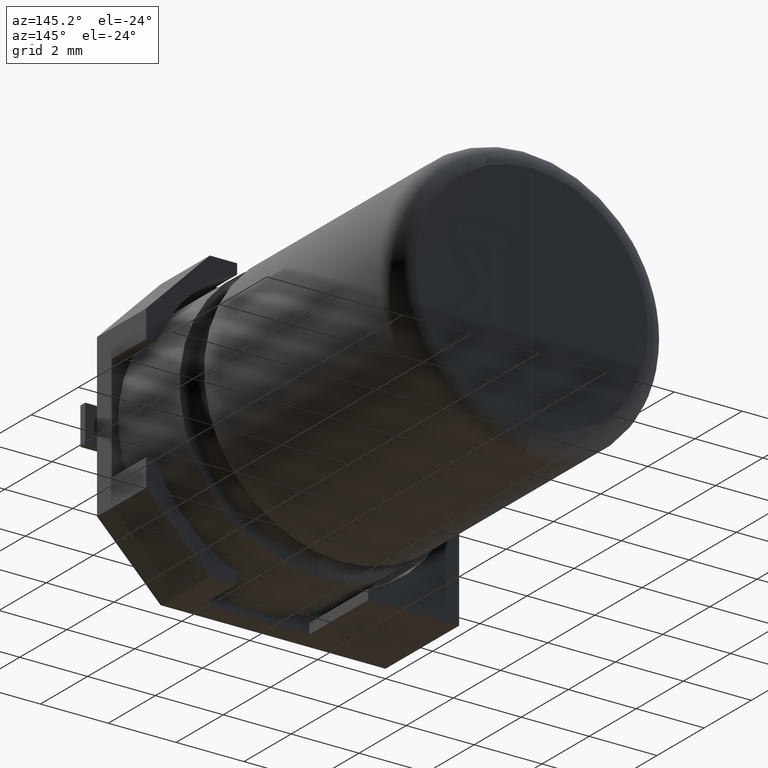
[diagram: clean part render]
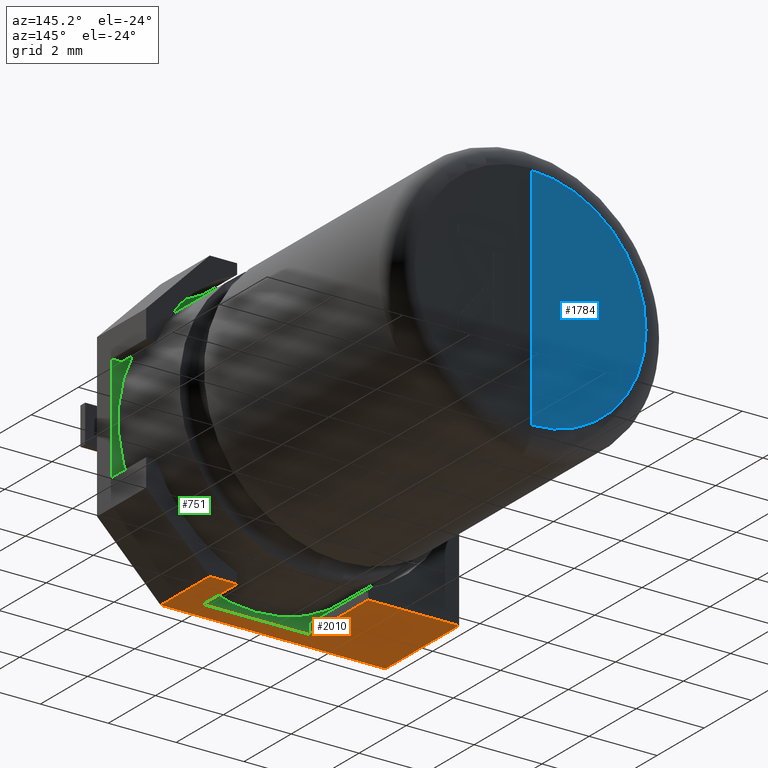
[diagram: same view with three faces highlighted in distinct colors, each labeled with its STEP entity id]
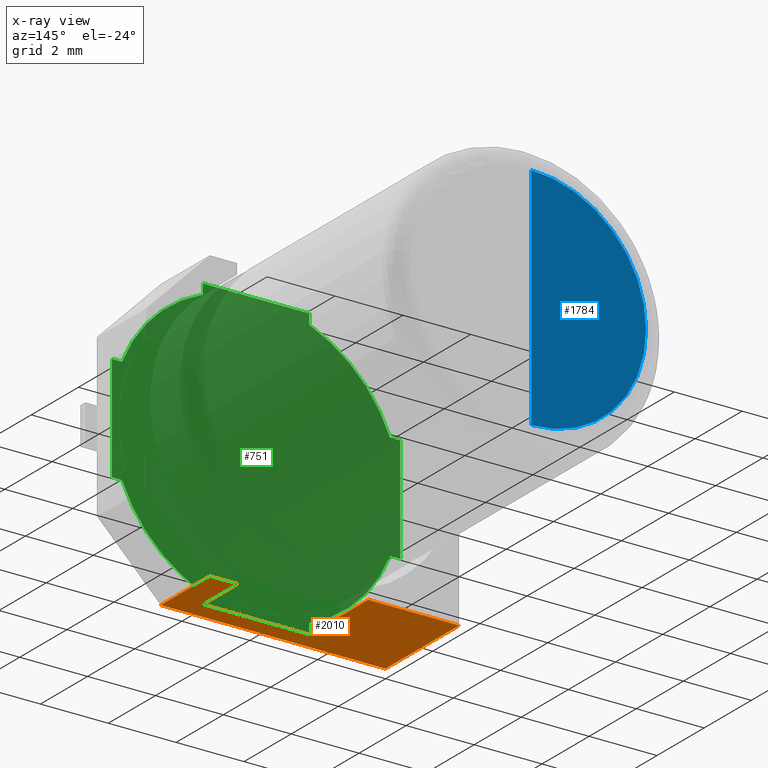
[diagram: x-ray of the same camera — body ghosted, the three highlighted faces saturated]
A machine part, auxiliary view with three faces highlighted in distinct colors.
The next image is the same camera in x-ray (body ghosted, the three faces saturated) — at least one of them is partly hidden behind the body in this view.
Their STEP definitions:

[orange] entity #2010 — the highlighted planar face has unit normal (0, 0, -1).
#6 = LINE ( 'NONE', #58, #1069 ) ;
#58 = CARTESIAN_POINT ( 'NONE',  ( 0.000000000000000000, 3.125000000000000000, -8.500000000000000000 ) ) ;
#94 = DIRECTION ( 'NONE',  ( 1.000000000000000000, 0.000000000000000000, 0.000000000000000000 ) ) ;
#101 = EDGE_CURVE ( 'NONE', #471, #329, #547, .T. ) ;
#128 = CARTESIAN_POINT ( 'NONE',  ( 5.818438714135809597, 0.6250000000000001110, -8.500000000000000000 ) ) ;
#191 = CARTESIAN_POINT ( 'NONE',  ( 6.625750000000000917, 0.000000000000000000, -8.500000000000000000 ) ) ;
#214 = CARTESIAN_POINT ( 'NONE',  ( 0.000000000000000000, 0.6250000000000001110, -8.500000000000000000 ) ) ;
#329 = VERTEX_POINT ( 'NONE', #352 ) ;
#348 = EDGE_CURVE ( 'NONE', #2992, #1726, #853, .T. ) ;
#352 = CARTESIAN_POINT ( 'NONE',  ( 2.681561285864186406, 3.125000000000000000, -8.500000000000000000 ) ) ;
#386 = ORIENTED_EDGE ( 'NONE', *, *, #3218, .F. ) ;
#410 = VECTOR ( 'NONE', #921, 1000.000000000000000 ) ;
#429 = ORIENTED_EDGE ( 'NONE', *, *, #1021, .T. ) ;
#464 = EDGE_CURVE ( 'NONE', #924, #329, #2231, .T. ) ;
#471 = VERTEX_POINT ( 'NONE', #3259 ) ;
#473 = VECTOR ( 'NONE', #2989, 1000.000000000000000 ) ;
#497 = VECTOR ( 'NONE', #1048, 1000.000000000000000 ) ;
#547 = LINE ( 'NONE', #2116, #2918 ) ;
#549 = DIRECTION ( 'NONE',  ( 0.000000000000000000, 0.000000000000000000, -1.000000000000000000 ) ) ;
#573 = DIRECTION ( 'NONE',  ( -0.000000000000000000, 1.000000000000000000, -0.000000000000000000 ) ) ;
#616 = CARTESIAN_POINT ( 'NONE',  ( 0.000000000000000000, 3.125000000000000000, -8.500000000000000000 ) ) ;
#698 = AXIS2_PLACEMENT_3D ( 'NONE', #2220, #549, #1886 ) ;
#725 = LINE ( 'NONE', #191, #2949 ) ;
#853 = LINE ( 'NONE', #128, #1051 ) ;
#857 = VECTOR ( 'NONE', #94, 1000.000000000000000 ) ;
#869 = VERTEX_POINT ( 'NONE', #2631 ) ;
#921 = DIRECTION ( 'NONE',  ( 1.000000000000000000, 0.000000000000000000, 0.000000000000000000 ) ) ;
#924 = VERTEX_POINT ( 'NONE', #616 ) ;
#1021 = EDGE_CURVE ( 'NONE', #1726, #2766, #1682, .T. ) ;
#1048 = DIRECTION ( 'NONE',  ( -1.000000000000000000, 0.000000000000000000, 0.000000000000000000 ) ) ;
#1051 = VECTOR ( 'NONE', #573, 1000.000000000000000 ) ;
#1069 = VECTOR ( 'NONE', #2418, 1000.000000000000000 ) ;
#1112 = VERTEX_POINT ( 'NONE', #2765 ) ;
#1141 = LINE ( 'NONE', #1388, #857 ) ;
#1145 = CARTESIAN_POINT ( 'NONE',  ( 5.818438714135811374, 2.083333333333333925, -8.500000000000000000 ) ) ;
#1273 = LINE ( 'NONE', #214, #497 ) ;
#1344 = EDGE_CURVE ( 'NONE', #924, #1112, #6, .T. ) ;
#1388 = CARTESIAN_POINT ( 'NONE',  ( 0.000000000000000000, 0.000000000000000000, -8.500000000000000000 ) ) ;
#1628 = DIRECTION ( 'NONE',  ( -0.000000000000000000, 1.000000000000000000, -0.000000000000000000 ) ) ;
#1682 = LINE ( 'NONE', #1145, #473 ) ;
#1726 = VERTEX_POINT ( 'NONE', #3227 ) ;
#1860 = ORIENTED_EDGE ( 'NONE', *, *, #101, .F. ) ;
#1886 = DIRECTION ( 'NONE',  ( -1.000000000000000000, 0.000000000000000000, -0.000000000000000000 ) ) ;
#1993 = ORIENTED_EDGE ( 'NONE', *, *, #1344, .F. ) ;
#2010 = ADVANCED_FACE ( 'NONE', ( #2714 ), #2199, .T. ) ;
#2116 = CARTESIAN_POINT ( 'NONE',  ( 2.681561285864186406, 0.6250000000000001110, -8.500000000000000000 ) ) ;
#2137 = ORIENTED_EDGE ( 'NONE', *, *, #464, .T. ) ;
#2199 = PLANE ( 'NONE',  #698 ) ;
#2211 = CARTESIAN_POINT ( 'NONE',  ( 0.000000000000000000, 3.125000000000000000, -8.500000000000000000 ) ) ;
#2220 = CARTESIAN_POINT ( 'NONE',  ( 0.000000000000000000, 3.125000000000000000, -8.500000000000000000 ) ) ;
#2231 = LINE ( 'NONE', #2211, #410 ) ;
#2324 = EDGE_LOOP ( 'NONE', ( #429, #3420, #2657, #1993, #2137, #1860, #386, #3365 ) ) ;
#2418 = DIRECTION ( 'NONE',  ( -0.000000000000000000, -1.000000000000000000, -0.000000000000000000 ) ) ;
#2432 = CARTESIAN_POINT ( 'NONE',  ( 5.818438714135809597, 0.6250000000000001110, -8.500000000000000000 ) ) ;
#2555 = EDGE_CURVE ( 'NONE', #869, #2766, #725, .T. ) ;
#2631 = CARTESIAN_POINT ( 'NONE',  ( 6.625750000000000917, 0.000000000000000000, -8.500000000000000000 ) ) ;
#2657 = ORIENTED_EDGE ( 'NONE', *, *, #3000, .F. ) ;
#2714 = FACE_OUTER_BOUND ( 'NONE', #2324, .T. ) ;
#2765 = CARTESIAN_POINT ( 'NONE',  ( 0.000000000000000000, 0.000000000000000000, -8.500000000000000000 ) ) ;
#2766 = VERTEX_POINT ( 'NONE', #3254 ) ;
#2918 = VECTOR ( 'NONE', #1628, 1000.000000000000000 ) ;
#2949 = VECTOR ( 'NONE', #3083, 1000.000000000000000 ) ;
#2989 = DIRECTION ( 'NONE',  ( 1.000000000000000000, 0.000000000000000000, 0.000000000000000000 ) ) ;
#2992 = VERTEX_POINT ( 'NONE', #2432 ) ;
#3000 = EDGE_CURVE ( 'NONE', #1112, #869, #1141, .T. ) ;
#3083 = DIRECTION ( 'NONE',  ( -0.000000000000000000, 1.000000000000000000, -0.000000000000000000 ) ) ;
#3218 = EDGE_CURVE ( 'NONE', #2992, #471, #1273, .T. ) ;
#3227 = CARTESIAN_POINT ( 'NONE',  ( 5.818438714135811374, 2.083333333333333925, -8.500000000000000000 ) ) ;
#3254 = CARTESIAN_POINT ( 'NONE',  ( 6.625750000000000917, 2.083333333333333925, -8.500000000000000000 ) ) ;
#3259 = CARTESIAN_POINT ( 'NONE',  ( 2.681561285864186406, 0.6250000000000001110, -8.500000000000000000 ) ) ;
#3365 = ORIENTED_EDGE ( 'NONE', *, *, #348, .T. ) ;
#3420 = ORIENTED_EDGE ( 'NONE', *, *, #2555, .F. ) ;

[blue] entity #1784 — the highlighted planar face has unit normal (0, 1, 0).
#190 = DIRECTION ( 'NONE',  ( 0.000000000000000000, -0.000000000000000000, 1.000000000000000000 ) ) ;
#301 = DIRECTION ( 'NONE',  ( -0.000000000000000000, -0.000000000000000000, -1.000000000000000000 ) ) ;
#560 = LINE ( 'NONE', #2648, #2731 ) ;
#708 = PLANE ( 'NONE',  #1925 ) ;
#916 = CIRCLE ( 'NONE', #1036, 3.374967499999999454 ) ;
#1034 = CARTESIAN_POINT ( 'NONE',  ( 4.250000000000000000, 12.30500000000000149, -4.250000000000001776 ) ) ;
#1036 = AXIS2_PLACEMENT_3D ( 'NONE', #1034, #1553, #3407 ) ;
#1183 = CARTESIAN_POINT ( 'NONE',  ( 4.250000000000000000, 12.30500000000000149, -4.250000000000001776 ) ) ;
#1271 = ORIENTED_EDGE ( 'NONE', *, *, #3138, .T. ) ;
#1377 = FACE_OUTER_BOUND ( 'NONE', #3226, .T. ) ;
#1421 = ORIENTED_EDGE ( 'NONE', *, *, #2978, .T. ) ;
#1553 = DIRECTION ( 'NONE',  ( 0.000000000000000000, 1.000000000000000000, 0.000000000000000000 ) ) ;
#1748 = DIRECTION ( 'NONE',  ( 0.000000000000000000, 1.000000000000000000, 0.000000000000000000 ) ) ;
#1784 = ADVANCED_FACE ( 'NONE', ( #1377 ), #708, .T. ) ;
#1874 = CARTESIAN_POINT ( 'NONE',  ( 4.250000000000000000, 12.30500000000000149, -0.8750325000000027664 ) ) ;
#1925 = AXIS2_PLACEMENT_3D ( 'NONE', #1183, #1748, #190 ) ;
#2275 = VERTEX_POINT ( 'NONE', #2664 ) ;
#2648 = CARTESIAN_POINT ( 'NONE',  ( 4.250000000000000000, 12.30500000000000149, -4.250000000000001776 ) ) ;
#2664 = CARTESIAN_POINT ( 'NONE',  ( 4.250000000000000000, 12.30500000000000149, -7.624967500000001230 ) ) ;
#2731 = VECTOR ( 'NONE', #301, 1000.000000000000000 ) ;
#2769 = VERTEX_POINT ( 'NONE', #1874 ) ;
#2978 = EDGE_CURVE ( 'NONE', #2769, #2275, #560, .T. ) ;
#3138 = EDGE_CURVE ( 'NONE', #2275, #2769, #916, .T. ) ;
#3226 = EDGE_LOOP ( 'NONE', ( #1421, #1271 ) ) ;
#3407 = DIRECTION ( 'NONE',  ( 0.000000000000000000, 0.000000000000000000, 1.000000000000000000 ) ) ;

[green] entity #751 — the highlighted planar face has unit normal (0, 1, -0).
#10 = ORIENTED_EDGE ( 'NONE', *, *, #2824, .F. ) ;
#11 = LINE ( 'NONE', #1863, #693 ) ;
#47 = EDGE_CURVE ( 'NONE', #1035, #1084, #502, .T. ) ;
#57 = CARTESIAN_POINT ( 'NONE',  ( 0.2999999999999995448, 0.6250000000000001110, -5.818438714135817591 ) ) ;
#59 = ORIENTED_EDGE ( 'NONE', *, *, #1724, .T. ) ;
#85 = ORIENTED_EDGE ( 'NONE', *, *, #1483, .T. ) ;
#97 = CARTESIAN_POINT ( 'NONE',  ( 8.500000000000000000, 0.6250000000000001110, -5.818438714135811374 ) ) ;
#153 = ORIENTED_EDGE ( 'NONE', *, *, #3218, .T. ) ;
#198 = DIRECTION ( 'NONE',  ( 0.000000000000000000, 0.000000000000000000, 1.000000000000000000 ) ) ;
#214 = CARTESIAN_POINT ( 'NONE',  ( 0.000000000000000000, 0.6250000000000001110, -8.500000000000000000 ) ) ;
#240 = AXIS2_PLACEMENT_3D ( 'NONE', #3076, #2532, #198 ) ;
#254 = CARTESIAN_POINT ( 'NONE',  ( 0.000000000000000000, 0.6250000000000001110, -5.818438714135817591 ) ) ;
#260 = VECTOR ( 'NONE', #777, 1000.000000000000000 ) ;
#267 = CARTESIAN_POINT ( 'NONE',  ( 2.681561285864189514, 0.6250000000000001110, -3.876472762382636778E-15 ) ) ;
#327 = CARTESIAN_POINT ( 'NONE',  ( 0.000000000000000000, 0.6250000000000001110, -5.818438714135817591 ) ) ;
#372 = VECTOR ( 'NONE', #1986, 1000.000000000000000 ) ;
#380 = DIRECTION ( 'NONE',  ( 0.000000000000000000, 0.000000000000000000, 1.000000000000000000 ) ) ;
#395 = CARTESIAN_POINT ( 'NONE',  ( 0.2999999999999999334, 0.6250000000000001110, -2.681561285864182853 ) ) ;
#400 = CARTESIAN_POINT ( 'NONE',  ( 5.818438714135809597, 0.6250000000000001110, -8.200000000000002842 ) ) ;
#412 = CIRCLE ( 'NONE', #2309, 4.250000000000000000 ) ;
#420 = EDGE_CURVE ( 'NONE', #1111, #2992, #1434, .T. ) ;
#427 = EDGE_CURVE ( 'NONE', #1976, #1457, #2505, .T. ) ;
#448 = ORIENTED_EDGE ( 'NONE', *, *, #769, .T. ) ;
#471 = VERTEX_POINT ( 'NONE', #3259 ) ;
#497 = VECTOR ( 'NONE', #1048, 1000.000000000000000 ) ;
#502 = LINE ( 'NONE', #254, #1270 ) ;
#518 = CARTESIAN_POINT ( 'NONE',  ( 4.249999999999998224, 0.6250000000000001110, -4.250000000000000000 ) ) ;
#558 = EDGE_CURVE ( 'NONE', #1500, #1146, #3105, .T. ) ;
#594 = CARTESIAN_POINT ( 'NONE',  ( 2.681561285864186406, 0.6250000000000001110, 0.000000000000000000 ) ) ;
#693 = VECTOR ( 'NONE', #3207, 1000.000000000000000 ) ;
#704 = DIRECTION ( 'NONE',  ( 0.000000000000000000, 0.000000000000000000, 1.000000000000000000 ) ) ;
#723 = DIRECTION ( 'NONE',  ( 1.000000000000000000, -0.000000000000000000, 0.000000000000000000 ) ) ;
#751 = ADVANCED_FACE ( 'NONE', ( #2148 ), #2412, .T. ) ;
#769 = EDGE_CURVE ( 'NONE', #1835, #1111, #412, .T. ) ;
#777 = DIRECTION ( 'NONE',  ( 1.445602896647339706E-15, 0.000000000000000000, 1.000000000000000000 ) ) ;
#842 = VERTEX_POINT ( 'NONE', #1588 ) ;
#956 = CARTESIAN_POINT ( 'NONE',  ( 2.681561285864186406, 0.6250000000000001110, -8.200000000000001066 ) ) ;
#977 = CARTESIAN_POINT ( 'NONE',  ( 8.199999999999999289, 0.6250000000000001110, -5.818438714135811374 ) ) ;
#994 = CARTESIAN_POINT ( 'NONE',  ( 0.000000000000000000, 0.6250000000000001110, 0.000000000000000000 ) ) ;
#1035 = VERTEX_POINT ( 'NONE', #57 ) ;
#1048 = DIRECTION ( 'NONE',  ( -1.000000000000000000, 0.000000000000000000, 0.000000000000000000 ) ) ;
#1076 = DIRECTION ( 'NONE',  ( 0.000000000000000000, 0.000000000000000000, -1.000000000000000000 ) ) ;
#1084 = VERTEX_POINT ( 'NONE', #327 ) ;
#1111 = VERTEX_POINT ( 'NONE', #400 ) ;
#1132 = AXIS2_PLACEMENT_3D ( 'NONE', #1742, #2518, #1756 ) ;
#1146 = VERTEX_POINT ( 'NONE', #1950 ) ;
#1167 = CARTESIAN_POINT ( 'NONE',  ( 5.818438714135811374, 0.6250000000000001110, 0.000000000000000000 ) ) ;
#1270 = VECTOR ( 'NONE', #1288, 1000.000000000000000 ) ;
#1273 = LINE ( 'NONE', #214, #497 ) ;
#1287 = CIRCLE ( 'NONE', #1132, 4.250000000000000000 ) ;
#1288 = DIRECTION ( 'NONE',  ( -1.000000000000000000, 0.000000000000000000, 0.000000000000000000 ) ) ;
#1422 = ORIENTED_EDGE ( 'NONE', *, *, #2291, .T. ) ;
#1434 = LINE ( 'NONE', #3014, #3273 ) ;
#1457 = VERTEX_POINT ( 'NONE', #2990 ) ;
#1482 = EDGE_CURVE ( 'NONE', #1500, #1763, #2973, .T. ) ;
#1483 = EDGE_CURVE ( 'NONE', #1846, #1035, #3399, .T. ) ;
#1500 = VERTEX_POINT ( 'NONE', #395 ) ;
#1504 = AXIS2_PLACEMENT_3D ( 'NONE', #3029, #1715, #380 ) ;
#1578 = EDGE_CURVE ( 'NONE', #1835, #2796, #1793, .T. ) ;
#1580 = DIRECTION ( 'NONE',  ( 0.000000000000000000, 1.000000000000000000, -0.000000000000000000 ) ) ;
#1588 = CARTESIAN_POINT ( 'NONE',  ( 5.818438714135811374, 0.6250000000000001110, -0.2999999999999999334 ) ) ;
#1640 = ORIENTED_EDGE ( 'NONE', *, *, #1652, .F. ) ;
#1652 = EDGE_CURVE ( 'NONE', #1846, #471, #2341, .T. ) ;
#1715 = DIRECTION ( 'NONE',  ( 0.000000000000000000, 1.000000000000000000, -0.000000000000000000 ) ) ;
#1724 = EDGE_CURVE ( 'NONE', #2863, #2535, #11, .T. ) ;
#1733 = ORIENTED_EDGE ( 'NONE', *, *, #1482, .F. ) ;
#1742 = CARTESIAN_POINT ( 'NONE',  ( 4.249999999999998224, 0.6250000000000001110, -4.250000000000000000 ) ) ;
#1756 = DIRECTION ( 'NONE',  ( 0.000000000000000000, 0.000000000000000000, 1.000000000000000000 ) ) ;
#1763 = VERTEX_POINT ( 'NONE', #3175 ) ;
#1770 = VECTOR ( 'NONE', #1076, 1000.000000000000000 ) ;
#1787 = ORIENTED_EDGE ( 'NONE', *, *, #2128, .T. ) ;
#1789 = ORIENTED_EDGE ( 'NONE', *, *, #1578, .F. ) ;
#1793 = LINE ( 'NONE', #2586, #3057 ) ;
#1835 = VERTEX_POINT ( 'NONE', #977 ) ;
#1846 = VERTEX_POINT ( 'NONE', #956 ) ;
#1863 = CARTESIAN_POINT ( 'NONE',  ( 0.000000000000000000, 0.6250000000000001110, 0.000000000000000000 ) ) ;
#1930 = ORIENTED_EDGE ( 'NONE', *, *, #558, .T. ) ;
#1950 = CARTESIAN_POINT ( 'NONE',  ( 2.681561285864189070, 0.6250000000000001110, -0.2999999999999989342 ) ) ;
#1976 = VERTEX_POINT ( 'NONE', #2105 ) ;
#1986 = DIRECTION ( 'NONE',  ( 0.000000000000000000, 0.000000000000000000, -1.000000000000000000 ) ) ;
#2018 = DIRECTION ( 'NONE',  ( 0.000000000000000000, 0.000000000000000000, 1.000000000000000000 ) ) ;
#2051 = CARTESIAN_POINT ( 'NONE',  ( 2.681561285864189070, 0.6250000000000001110, 0.000000000000000000 ) ) ;
#2062 = CARTESIAN_POINT ( 'NONE',  ( 4.249999999999998224, 0.6250000000000001110, -4.250000000000000000 ) ) ;
#2063 = LINE ( 'NONE', #267, #260 ) ;
#2105 = CARTESIAN_POINT ( 'NONE',  ( 8.199999999999999289, 0.6250000000000001110, -2.681561285864191735 ) ) ;
#2128 = EDGE_CURVE ( 'NONE', #842, #1976, #1287, .T. ) ;
#2129 = VECTOR ( 'NONE', #2459, 1000.000000000000000 ) ;
#2148 = FACE_OUTER_BOUND ( 'NONE', #2162, .T. ) ;
#2157 = ORIENTED_EDGE ( 'NONE', *, *, #2691, .T. ) ;
#2162 = EDGE_LOOP ( 'NONE', ( #1733, #1930, #1422, #59, #10, #1787, #2742, #3097, #1789, #448, #3300, #153, #1640, #85, #3102, #2157 ) ) ;
#2173 = DIRECTION ( 'NONE',  ( -1.000000000000000000, 0.000000000000000000, 0.000000000000000000 ) ) ;
#2184 = LINE ( 'NONE', #3061, #2342 ) ;
#2251 = LINE ( 'NONE', #2526, #372 ) ;
#2291 = EDGE_CURVE ( 'NONE', #1146, #2863, #2063, .T. ) ;
#2306 = DIRECTION ( 'NONE',  ( 0.000000000000000000, 0.000000000000000000, 1.000000000000000000 ) ) ;
#2309 = AXIS2_PLACEMENT_3D ( 'NONE', #2062, #2842, #2306 ) ;
#2341 = LINE ( 'NONE', #594, #1770 ) ;
#2342 = VECTOR ( 'NONE', #704, 1000.000000000000000 ) ;
#2412 = PLANE ( 'NONE',  #240 ) ;
#2432 = CARTESIAN_POINT ( 'NONE',  ( 5.818438714135809597, 0.6250000000000001110, -8.500000000000000000 ) ) ;
#2439 = CARTESIAN_POINT ( 'NONE',  ( 0.000000000000000000, 0.6250000000000001110, -2.681561285864182853 ) ) ;
#2459 = DIRECTION ( 'NONE',  ( 1.000000000000000000, 0.000000000000000000, 1.445602896647339706E-15 ) ) ;
#2477 = DIRECTION ( 'NONE',  ( 0.000000000000000000, 0.000000000000000000, -1.000000000000000000 ) ) ;
#2505 = LINE ( 'NONE', #2743, #2129 ) ;
#2518 = DIRECTION ( 'NONE',  ( 0.000000000000000000, 1.000000000000000000, -0.000000000000000000 ) ) ;
#2526 = CARTESIAN_POINT ( 'NONE',  ( 8.500000000000000000, 0.6250000000000001110, 0.000000000000000000 ) ) ;
#2532 = DIRECTION ( 'NONE',  ( 0.000000000000000000, 1.000000000000000000, -0.000000000000000000 ) ) ;
#2535 = VERTEX_POINT ( 'NONE', #1167 ) ;
#2586 = CARTESIAN_POINT ( 'NONE',  ( 0.000000000000000000, 0.6250000000000001110, -5.818438714135811374 ) ) ;
#2594 = EDGE_CURVE ( 'NONE', #1457, #2796, #2251, .T. ) ;
#2649 = DIRECTION ( 'NONE',  ( 0.000000000000000000, 0.000000000000000000, 1.000000000000000000 ) ) ;
#2691 = EDGE_CURVE ( 'NONE', #1084, #1763, #2833, .T. ) ;
#2742 = ORIENTED_EDGE ( 'NONE', *, *, #427, .T. ) ;
#2743 = CARTESIAN_POINT ( 'NONE',  ( 3.876472762382657289E-15, 0.6250000000000001110, -2.681561285864203281 ) ) ;
#2796 = VERTEX_POINT ( 'NONE', #97 ) ;
#2824 = EDGE_CURVE ( 'NONE', #842, #2535, #2184, .T. ) ;
#2833 = LINE ( 'NONE', #994, #3298 ) ;
#2842 = DIRECTION ( 'NONE',  ( 0.000000000000000000, 1.000000000000000000, -0.000000000000000000 ) ) ;
#2863 = VERTEX_POINT ( 'NONE', #2051 ) ;
#2927 = AXIS2_PLACEMENT_3D ( 'NONE', #518, #1580, #2649 ) ;
#2973 = LINE ( 'NONE', #2439, #2997 ) ;
#2990 = CARTESIAN_POINT ( 'NONE',  ( 8.500000000000000000, 0.6250000000000001110, -2.681561285864191735 ) ) ;
#2992 = VERTEX_POINT ( 'NONE', #2432 ) ;
#2997 = VECTOR ( 'NONE', #2173, 1000.000000000000000 ) ;
#3014 = CARTESIAN_POINT ( 'NONE',  ( 5.818438714135809597, 0.6250000000000001110, 0.000000000000000000 ) ) ;
#3029 = CARTESIAN_POINT ( 'NONE',  ( 4.249999999999998224, 0.6250000000000001110, -4.250000000000000000 ) ) ;
#3057 = VECTOR ( 'NONE', #723, 1000.000000000000000 ) ;
#3061 = CARTESIAN_POINT ( 'NONE',  ( 5.818438714135811374, 0.6250000000000001110, 0.000000000000000000 ) ) ;
#3076 = CARTESIAN_POINT ( 'NONE',  ( 0.000000000000000000, 0.6250000000000001110, 0.000000000000000000 ) ) ;
#3097 = ORIENTED_EDGE ( 'NONE', *, *, #2594, .T. ) ;
#3102 = ORIENTED_EDGE ( 'NONE', *, *, #47, .T. ) ;
#3105 = CIRCLE ( 'NONE', #2927, 4.250000000000000000 ) ;
#3175 = CARTESIAN_POINT ( 'NONE',  ( 0.000000000000000000, 0.6250000000000001110, -2.681561285864182853 ) ) ;
#3207 = DIRECTION ( 'NONE',  ( 1.000000000000000000, -0.000000000000000000, 0.000000000000000000 ) ) ;
#3218 = EDGE_CURVE ( 'NONE', #2992, #471, #1273, .T. ) ;
#3259 = CARTESIAN_POINT ( 'NONE',  ( 2.681561285864186406, 0.6250000000000001110, -8.500000000000000000 ) ) ;
#3273 = VECTOR ( 'NONE', #2477, 1000.000000000000000 ) ;
#3298 = VECTOR ( 'NONE', #2018, 1000.000000000000000 ) ;
#3300 = ORIENTED_EDGE ( 'NONE', *, *, #420, .T. ) ;
#3399 = CIRCLE ( 'NONE', #1504, 4.250000000000000000 ) ;